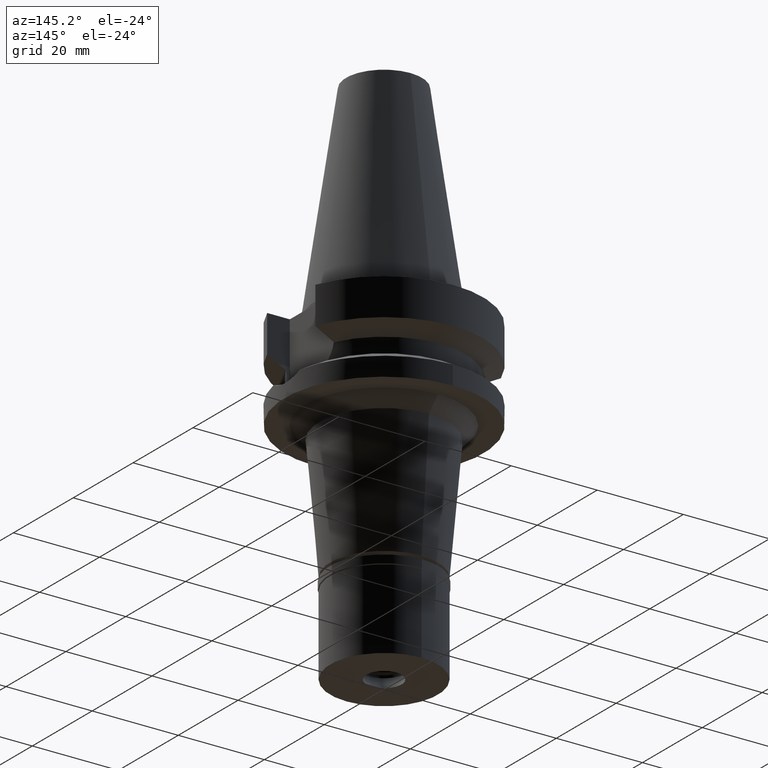
[diagram: clean part render]
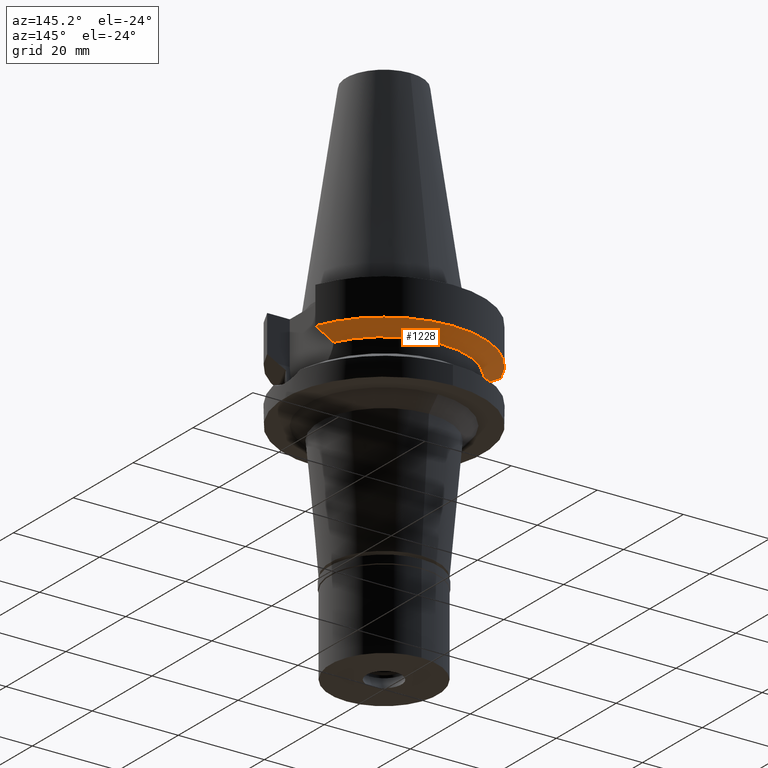
[diagram: same view with one face highlighted and labeled with its STEP entity id]
A machine part, auxiliary view. The second image highlights one B-rep face of the part: STEP entity #1228.
In plain terms, the highlighted conical surface has half-angle 60 deg.
Its self-contained STEP definition (entity closure, byte-faithful):
#140 = AXIS2_PLACEMENT_3D ( 'NONE', #2234, #2199, #1032 ) ;
#205 = B_SPLINE_CURVE_WITH_KNOTS ( 'NONE', 3,
 ( #471, #1173, #2837, #2373 ),
 .UNSPECIFIED., .F., .F.,
 ( 4, 4 ),
 ( 0.0000000000000000000, 1.000000000000000000 ),
 .UNSPECIFIED. ) ;
#225 = ORIENTED_EDGE ( 'NONE', *, *, #420, .F. ) ;
#244 = ORIENTED_EDGE ( 'NONE', *, *, #1587, .T. ) ;
#272 = ORIENTED_EDGE ( 'NONE', *, *, #544, .F. ) ;
#288 = EDGE_CURVE ( 'NONE', #2230, #1574, #2167, .T. ) ;
#299 = CARTESIAN_POINT ( 'NONE',  ( 20.64098922513857204, 8.049999155450739963, -10.05625859774404063 ) ) ;
#313 = VERTEX_POINT ( 'NONE', #2502 ) ;
#346 = FACE_OUTER_BOUND ( 'NONE', #1236, .T. ) ;
#388 = CARTESIAN_POINT ( 'NONE',  ( -18.96736186712000105, 8.050001278060001653, -10.94999977536999936 ) ) ;
#400 = CARTESIAN_POINT ( 'NONE',  ( 0.0000000000000000000, 0.0000000000000000000, -11.87660944646999894 ) ) ;
#420 = EDGE_CURVE ( 'NONE', #313, #777, #1888, .T. ) ;
#471 = CARTESIAN_POINT ( 'NONE',  ( -18.96736186712000105, 8.050001278060001653, -10.94999977536999936 ) ) ;
#522 = CARTESIAN_POINT ( 'NONE',  ( 18.30334767960350817, 8.049999956193227391, -11.30291651801537789 ) ) ;
#544 = EDGE_CURVE ( 'NONE', #1574, #313, #2843, .T. ) ;
#571 = VERTEX_POINT ( 'NONE', #2024 ) ;
#641 = CARTESIAN_POINT ( 'NONE',  ( -17.72682657658894456, 8.027186145136614215, -11.61172868551800086 ) ) ;
#677 = ORIENTED_EDGE ( 'NONE', *, *, #2371, .T. ) ;
#761 = AXIS2_PLACEMENT_3D ( 'NONE', #400, #1124, #1824 ) ;
#765 = DIRECTION ( 'NONE',  ( 0.0000000000000000000, 1.000000000000000000, 0.0000000000000000000 ) ) ;
#771 = CARTESIAN_POINT ( 'NONE',  ( 17.23531622902000038, 7.996491146276001771, -11.87660607782000000 ) ) ;
#777 = VERTEX_POINT ( 'NONE', #1634 ) ;
#1006 = CARTESIAN_POINT ( 'NONE',  ( 0.0000000000000000000, 0.0000000000000000000, -10.72190890808999875 ) ) ;
#1032 = DIRECTION ( 'NONE',  ( 0.0000000000000000000, 1.000000000000000000, 0.0000000000000000000 ) ) ;
#1124 = DIRECTION ( 'NONE',  ( 0.0000000000000000000, 0.0000000000000000000, -1.000000000000000000 ) ) ;
#1173 = CARTESIAN_POINT ( 'NONE',  ( -19.78176599987389750, 8.050001300084160150, -10.51717224073629353 ) ) ;
#1228 = ADVANCED_FACE ( 'NONE', ( #346 ), #2751, .T. ) ;
#1236 = EDGE_LOOP ( 'NONE', ( #2158, #244, #225, #272, #2771, #677 ) ) ;
#1247 = CARTESIAN_POINT ( 'NONE',  ( -17.23531135277999837, 7.996501749842999551, -11.87660739337000138 ) ) ;
#1450 = CARTESIAN_POINT ( 'NONE',  ( 21.54524325238000060, 8.049999577379001181, -9.567211146543000311 ) ) ;
#1475 = CARTESIAN_POINT ( 'NONE',  ( 18.96738966530000070, 8.049994318182998043, -10.95000099923000114 ) ) ;
#1574 = VERTEX_POINT ( 'NONE', #1247 ) ;
#1587 = EDGE_CURVE ( 'NONE', #1916, #777, #2087, .T. ) ;
#1593 = CARTESIAN_POINT ( 'NONE',  ( -17.23531135277999837, 7.996501749842999551, -11.87660739337000138 ) ) ;
#1634 = CARTESIAN_POINT ( 'NONE',  ( 18.96738966530000070, 8.049994318182998043, -10.95000099923000114 ) ) ;
#1824 = DIRECTION ( 'NONE',  ( -0.9071218755693948310, 0.4208680349746975469, 0.0000000000000000000 ) ) ;
#1861 = CIRCLE ( 'NONE', #140, 23.00000000000000000 ) ;
#1888 = B_SPLINE_CURVE_WITH_KNOTS ( 'NONE', 3,
 ( #771, #2646, #522, #1475 ),
 .UNSPECIFIED., .F., .F.,
 ( 4, 4 ),
 ( 0.0000000000000000000, 1.000000000000000000 ),
 .UNSPECIFIED. ) ;
#1916 = VERTEX_POINT ( 'NONE', #1450 ) ;
#1971 = DIRECTION ( 'NONE',  ( 0.0000000000000000000, 0.0000000000000000000, 1.000000000000000000 ) ) ;
#2024 = CARTESIAN_POINT ( 'NONE',  ( -21.54524231189000005, 8.050002094537999753, -9.567194606710000215 ) ) ;
#2087 = B_SPLINE_CURVE_WITH_KNOTS ( 'NONE', 3,
 ( #2446, #299, #2852, #2385 ),
 .UNSPECIFIED., .F., .F.,
 ( 4, 4 ),
 ( 0.0000000000000000000, 1.000000000000000000 ),
 .UNSPECIFIED. ) ;
#2145 = CARTESIAN_POINT ( 'NONE',  ( -18.96736186712000105, 8.050001278060001653, -10.94999977536999936 ) ) ;
#2158 = ORIENTED_EDGE ( 'NONE', *, *, #2785, .F. ) ;
#2167 = B_SPLINE_CURVE_WITH_KNOTS ( 'NONE', 3,
 ( #388, #2285, #641, #1593 ),
 .UNSPECIFIED., .F., .F.,
 ( 4, 4 ),
 ( 0.0000000000000000000, 1.000000000000000000 ),
 .UNSPECIFIED. ) ;
#2199 = DIRECTION ( 'NONE',  ( 0.0000000000000000000, 0.0000000000000000000, 1.000000000000000000 ) ) ;
#2230 = VERTEX_POINT ( 'NONE', #2145 ) ;
#2234 = CARTESIAN_POINT ( 'NONE',  ( 0.0000000000000000000, 0.0000000000000000000, -9.567208369710998639 ) ) ;
#2285 = CARTESIAN_POINT ( 'NONE',  ( -18.30417674803561567, 8.050000009835159176, -11.30245975391281377 ) ) ;
#2371 = EDGE_CURVE ( 'NONE', #2230, #571, #205, .T. ) ;
#2373 = CARTESIAN_POINT ( 'NONE',  ( -21.54524231189000005, 8.050002094537999753, -9.567194606710000215 ) ) ;
#2385 = CARTESIAN_POINT ( 'NONE',  ( 18.96738966530000070, 8.049994318182998043, -10.95000099923000114 ) ) ;
#2446 = CARTESIAN_POINT ( 'NONE',  ( 21.54524325238000060, 8.049999577379001181, -9.567211146543000311 ) ) ;
#2502 = CARTESIAN_POINT ( 'NONE',  ( 17.23531622902000038, 7.996491146276001771, -11.87660607782000000 ) ) ;
#2617 = AXIS2_PLACEMENT_3D ( 'NONE', #1006, #1971, #765 ) ;
#2646 = CARTESIAN_POINT ( 'NONE',  ( 17.72598986751017236, 8.027133616107310132, -11.61218197945228070 ) ) ;
#2751 = CONICAL_SURFACE ( 'NONE', #2617, 21.00000000000000000, 1.047197551196400456 ) ;
#2771 = ORIENTED_EDGE ( 'NONE', *, *, #288, .F. ) ;
#2785 = EDGE_CURVE ( 'NONE', #1916, #571, #1861, .T. ) ;
#2837 = CARTESIAN_POINT ( 'NONE',  ( -20.64102060711186226, 8.050004185766349352, -10.05624058751051741 ) ) ;
#2843 = CIRCLE ( 'NONE', #761, 19.00000000000000000 ) ;
#2852 = CARTESIAN_POINT ( 'NONE',  ( 19.78174442298433533, 8.049991903556987793, -10.51718567366341262 ) ) ;